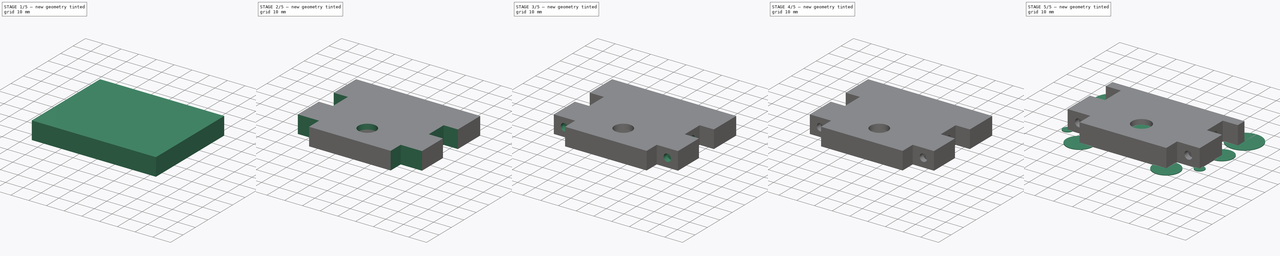
[diagram: build sequence overview — one tinted view per stage of 5, left to right]
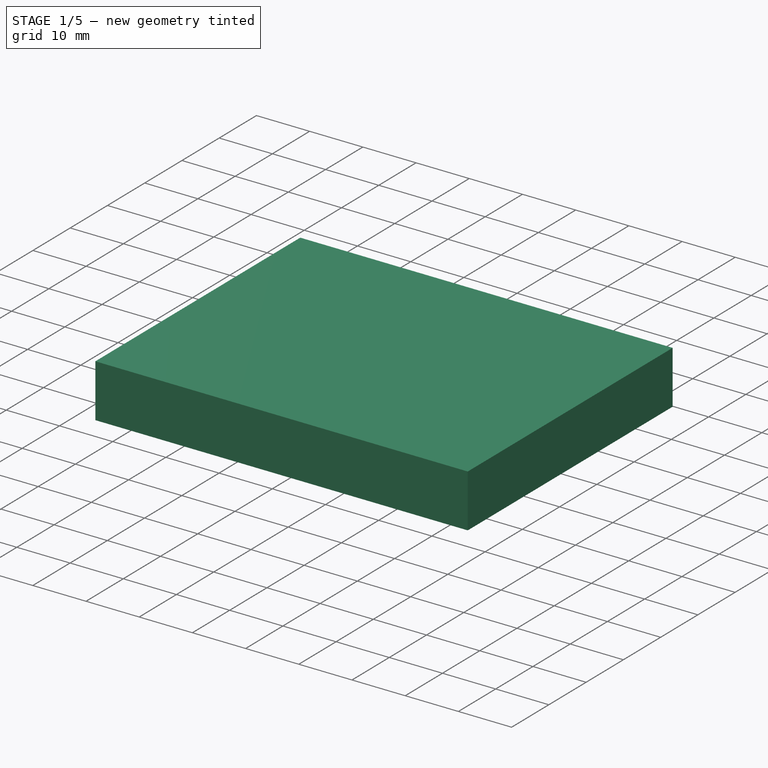
[diagram: stage 1 of 5 — iso view after this stage's code; geometry added in this stage tinted green]
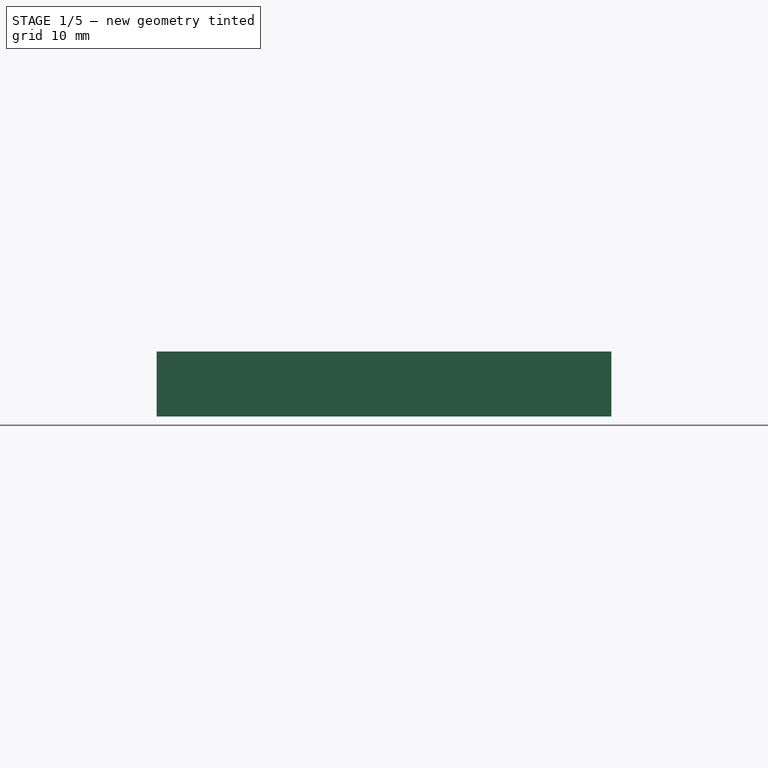
[diagram: stage 1 of 5 — front view after this stage's code; geometry added in this stage tinted green]
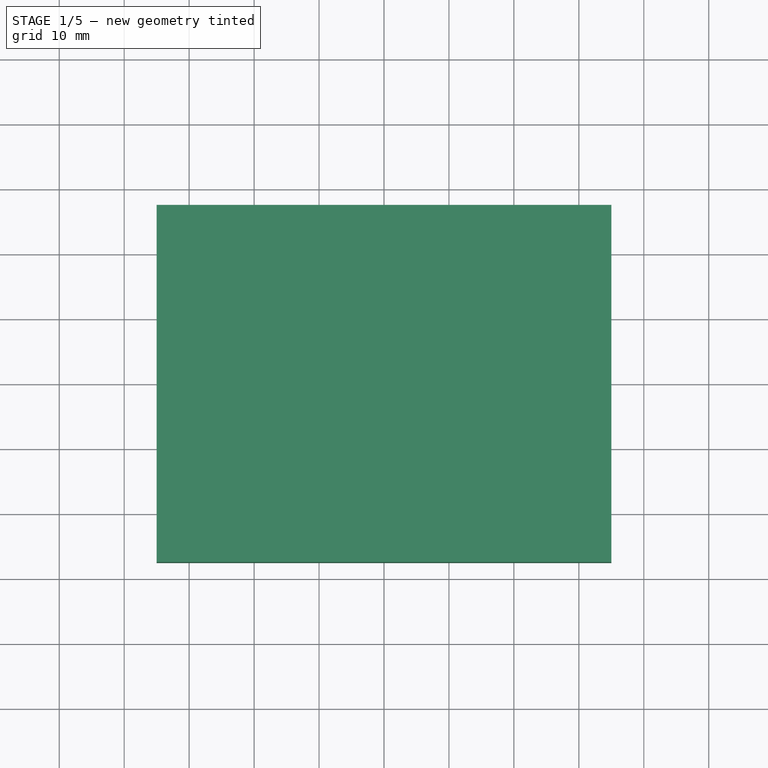
[diagram: stage 1 of 5 — top view after this stage's code; geometry added in this stage tinted green]
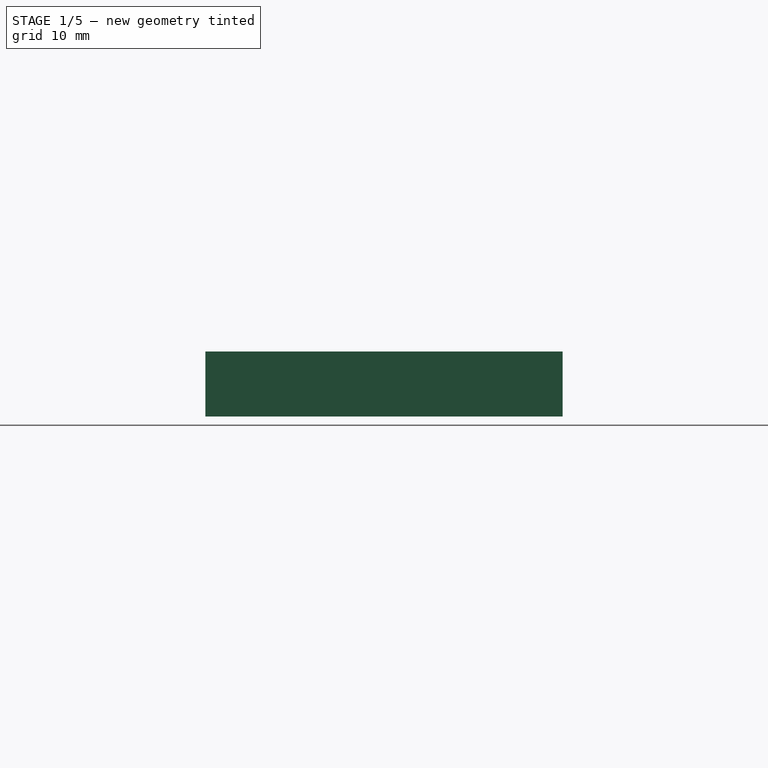
[diagram: stage 1 of 5 — right view after this stage's code; geometry added in this stage tinted green]
FCSTD DOCUMENT  (FreeCAD 0.15R4671 (Git))
Label: Halter Fraesspindel Bot
License: All rights reserved
LicenseURL: http://de.wikipedia.org/wiki/Alle_Rechte_vorbehalten
objects: Sketcher::SketchObject×13, PartDesign::Pocket×7, PartDesign::Pad×6, Part::Cut×3
note: 42 computed .brp shape members not serialized (recipe doc carries the construction recipe); baked Part::Feature solids carry a one-line shape summary decoded from their .brp

FEATURE [Sketcher::SketchObject] Sketch
  sketch-geometry (4):
    g0: LineSegment StartX=-35 StartY=27.5 StartZ=0 EndX=35 EndY=27.5 EndZ=0
    g1: LineSegment StartX=35 StartY=27.5 StartZ=0 EndX=35 EndY=-27.5 EndZ=0
    g2: LineSegment StartX=35 StartY=-27.5 StartZ=0 EndX=-35 EndY=-27.5 EndZ=0
    g3: LineSegment StartX=-35 StartY=-27.5 StartZ=0 EndX=-35 EndY=27.5 EndZ=0
  constraints (12):
    c: Coincident(g0,g1)
    c: Coincident(g1,g2)
    c: Coincident(g2,g3)
    c: Coincident(g3,g0)
    c: Horizontal(g0)
    c: Horizontal(g2)
    c: Vertical(g1)
    c: Vertical(g3)
    c: DistanceY(g3) = 55
    c: Symmetric(g0,g1,g-1)
    c: Symmetric(g0,g0,g-2)
    c: DistanceX(g0) = 70
FEATURE [PartDesign::Pad] Pad
  Length = 10
  Length2 = 100
  Sketch = -> Sketch
  Type = 0
FEATURE [Sketcher::SketchObject] Sketch001
  ExternalGeometry = -> [Pad]
  Placement = pos=(0,0,0) rot=(1,0,0;3.14159rad)
  Support = -> Pad [Face5]
  sketch-geometry (1):
    g0: Circle CenterX=0 CenterY=13.45 CenterZ=0 NormalX=0 NormalY=0 NormalZ=1 Radius=11.05
  constraints (3):
    c: PointOnObject(g0,g-2)
    c: Radius(g0) = 11.05
    c: DistanceY(g0,g-3) = 14.05
FEATURE [PartDesign::Pocket] Pocket
  Length = 7
  Sketch = -> Sketch001
  Type = 0
FEATURE [Sketcher::SketchObject] Sketch007
  Placement = pos=(-24,0,0) rot=(0.57735,0.57735,0.57735;2.0944rad)
  sketch-geometry (11):
    g0: LineSegment [constr] StartX=5.53516 StartY=1.475 StartZ=0 EndX=7.57032 EndY=5 EndZ=0
    g1: LineSegment StartX=7.57032 StartY=5 StartZ=0 EndX=5.53516 EndY=8.525 EndZ=0
    g2: LineSegment StartX=5.53516 StartY=8.525 StartZ=0 EndX=1.46484 EndY=8.525 EndZ=0
    g3: LineSegment StartX=1.46484 StartY=8.525 StartZ=0 EndX=-0.570319 EndY=5 EndZ=0
    g4: LineSegment [constr] StartX=-0.570319 StartY=5 StartZ=0 EndX=1.46484 EndY=1.475 EndZ=0
    g5: LineSegment [constr] StartX=1.46484 StartY=1.475 StartZ=0 EndX=5.53516 EndY=1.475 EndZ=0
    g6: Circle [constr] CenterX=3.5 CenterY=5 CenterZ=0 NormalX=0 NormalY=0 NormalZ=1 Radius=4.07032
    g7: LineSegment StartX=-0.570319 StartY=0 StartZ=0 EndX=7.57032 EndY=0 EndZ=0
    g8: LineSegment StartX=7.57032 StartY=0 StartZ=0 EndX=7.57032 EndY=5 EndZ=0
    g9: LineSegment [constr] StartX=7.57032 StartY=5 StartZ=0 EndX=-0.570319 EndY=5 EndZ=0
    g10: LineSegment StartX=-0.570319 StartY=5 StartZ=0 EndX=-0.570319 EndY=0 EndZ=0
  constraints (28):
    c: Coincident(g0,g1)
    c: Coincident(g1,g2)
    c: Coincident(g2,g3)
    c: Coincident(g3,g4)
    c: Coincident(g4,g5)
    c: Coincident(g5,g0)
    c: Equal(g0, g1-g5) x5
    c: PointOnObject(g0,g6)
    c: PointOnObject(g1,g6)
    c: PointOnObject(g2,g6)
    c: PointOnObject(g3,g6)
    c: PointOnObject(g4,g6)
    c: PointOnObject(g5,g6)
    c: Horizontal(g5)
    c: Coincident(g7,g8)
    c: Coincident(g8,g9)
    c: Coincident(g9,g10)
    c: Coincident(g10,g7)
    c: Horizontal(g7)
    c: Horizontal(g9)
    c: Vertical(g8)
    c: Vertical(g10)
    c: Coincident(g8,g0)
    c: Coincident(g9,g3)
    c: PointOnObject(g7,g-1)
    c: DistanceX(g6) = 3.5
    c: DistanceY(g6) = 5
    c: Distance(g1,g0) = 7.05
FEATURE [PartDesign::Pad] Pad001
  Length = 5.1
  Length2 = 100
  Placement = pos=(-24,0,0) rot=(0.57735,0.57735,0.57735;2.0944rad)
  Sketch = -> Sketch007
  Type = 0
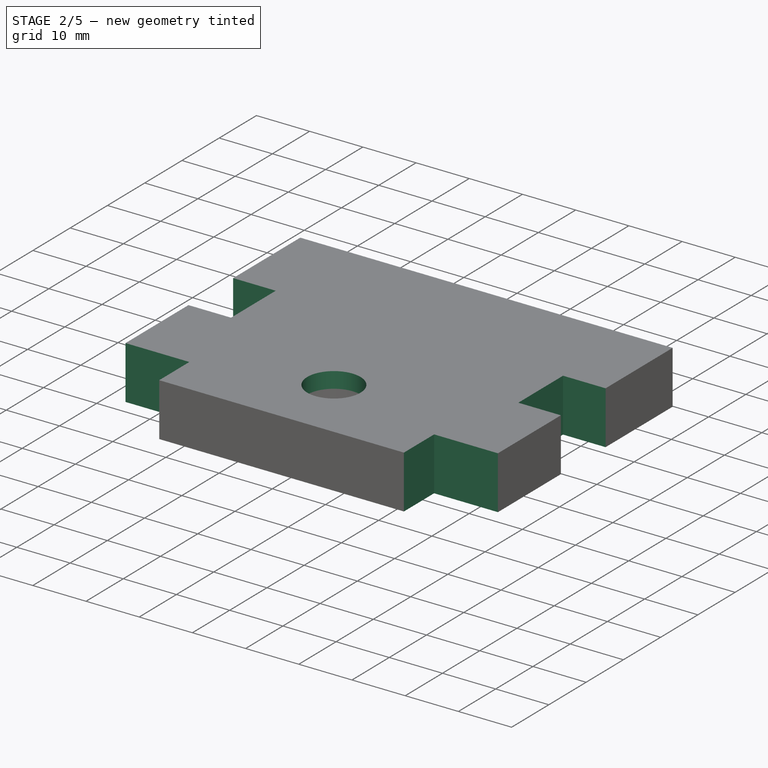
[diagram: stage 2 of 5 — iso view after this stage's code; geometry added in this stage tinted green]
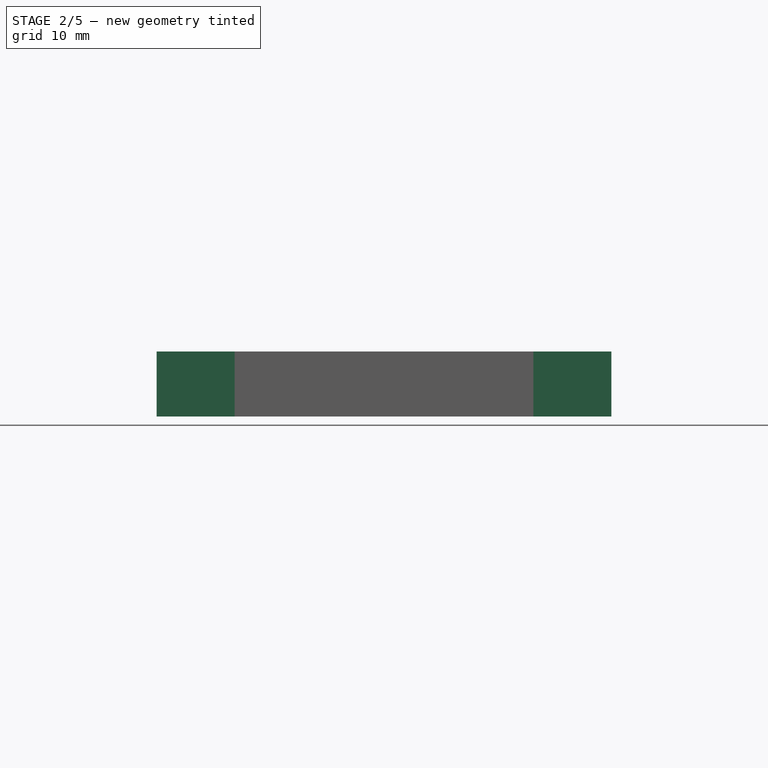
[diagram: stage 2 of 5 — front view after this stage's code; geometry added in this stage tinted green]
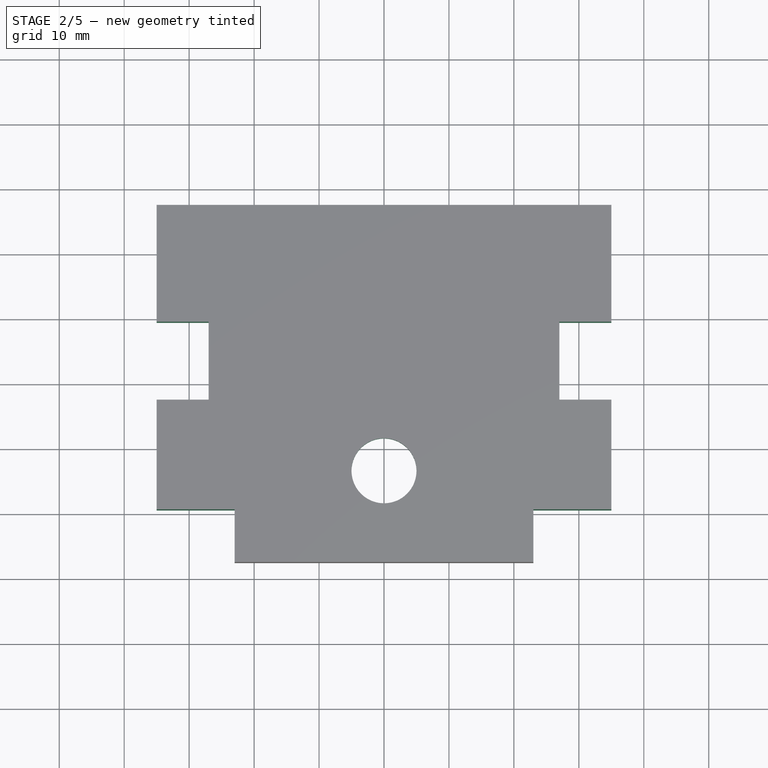
[diagram: stage 2 of 5 — top view after this stage's code; geometry added in this stage tinted green]
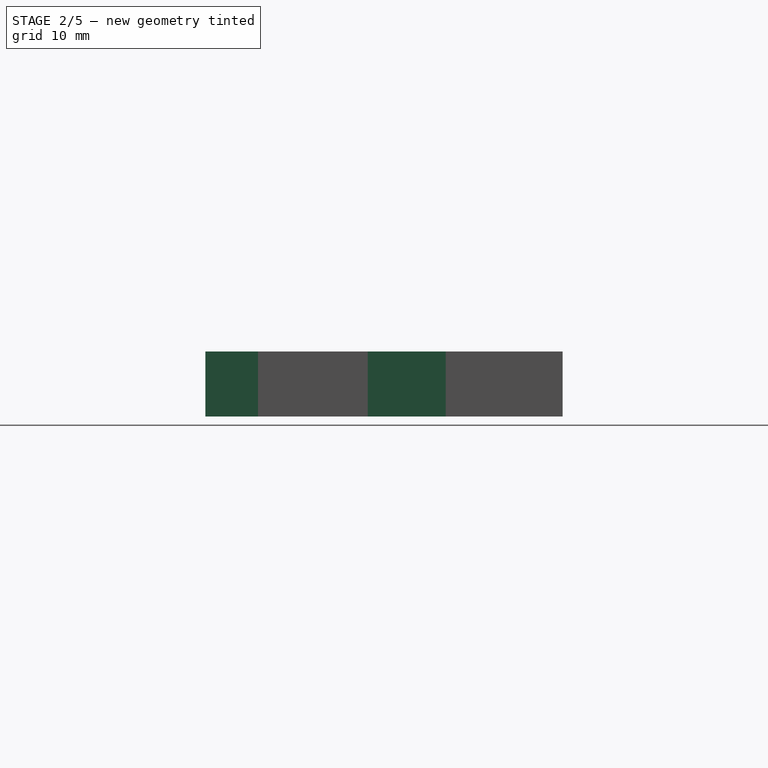
[diagram: stage 2 of 5 — right view after this stage's code; geometry added in this stage tinted green]
FEATURE [Sketcher::SketchObject] Sketch002
  ExternalGeometry = -> [Pocket]
  Placement = pos=(0,0,7) rot=(1,0,0;3.14159rad)
  Support = -> Pocket [Face8]
  sketch-geometry (1):
    g0: Circle CenterX=0 CenterY=13.45 CenterZ=0 NormalX=0 NormalY=0 NormalZ=1 Radius=5
  constraints (2):
    c: Coincident(g0,g-3)
    c: Radius(g0) = 5
FEATURE [PartDesign::Pocket] Pocket001
  Length = 5
  Sketch = -> Sketch002
  Type = 1
FEATURE [Sketcher::SketchObject] Sketch003
  ExternalGeometry = -> [Pocket001]
  Placement = pos=(0,0,10) rot=(0,0,1;0rad)
  Support = -> Pocket001 [Face5]
  sketch-geometry (16):
    g0: LineSegment StartX=-35 StartY=-27.5 StartZ=0 EndX=-23 EndY=-27.5 EndZ=0
    g1: LineSegment StartX=-23 StartY=-27.5 StartZ=0 EndX=-23 EndY=-19.4 EndZ=0
    g2: LineSegment StartX=-23 StartY=-19.4 StartZ=0 EndX=-35 EndY=-19.4 EndZ=0
    g3: LineSegment StartX=-35 StartY=-19.4 StartZ=0 EndX=-35 EndY=-27.5 EndZ=0
    g4: LineSegment StartX=35 StartY=-27.5 StartZ=0 EndX=23 EndY=-27.5 EndZ=0
    g5: LineSegment StartX=23 StartY=-27.5 StartZ=0 EndX=23 EndY=-19.4 EndZ=0
    g6: LineSegment StartX=23 StartY=-19.4 StartZ=0 EndX=35 EndY=-19.4 EndZ=0
    g7: LineSegment StartX=35 StartY=-19.4 StartZ=0 EndX=35 EndY=-27.5 EndZ=0
    g8: LineSegment StartX=-35 StartY=9.5 StartZ=0 EndX=-27 EndY=9.5 EndZ=0
    g9: LineSegment StartX=-27 StartY=9.5 StartZ=0 EndX=-27 EndY=-2.5 EndZ=0
    g10: LineSegment StartX=-27 StartY=-2.5 StartZ=0 EndX=-35 EndY=-2.5 EndZ=0
    g11: LineSegment StartX=-35 StartY=-2.5 StartZ=0 EndX=-35 EndY=9.5 EndZ=0
    g12: LineSegment StartX=35 StartY=9.5 StartZ=0 EndX=27 EndY=9.5 EndZ=0
    g13: LineSegment StartX=27 StartY=9.5 StartZ=0 EndX=27 EndY=-2.5 EndZ=0
    g14: LineSegment StartX=27 StartY=-2.5 StartZ=0 EndX=35 EndY=-2.5 EndZ=0
    g15: LineSegment StartX=35 StartY=-2.5 StartZ=0 EndX=35 EndY=9.5 EndZ=0
  constraints (46):
    c: Coincident(g0,g1)
    c: Coincident(g1,g2)
    c: Coincident(g2,g3)
    c: Coincident(g3,g0)
    c: Horizontal(g0)
    c: Horizontal(g2)
    c: Vertical(g1)
    c: Vertical(g3)
    c: Coincident(g0,g-3)
    c: Coincident(g4,g5)
    c: Coincident(g5,g6)
    c: Coincident(g6,g7)
    c: Coincident(g7,g4)
    c: Horizontal(g4)
    c: Horizontal(g6)
    c: Vertical(g5)
    c: Vertical(g7)
    c: Coincident(g4,g-4)
    c: Coincident(g8,g9)
    c: Coincident(g9,g10)
    c: Coincident(g10,g11)
    c: Coincident(g11,g8)
    c: Horizontal(g8)
    c: Horizontal(g10)
    c: Vertical(g9)
    c: Vertical(g11)
    c: PointOnObject(g8,g-3)
    c: Coincident(g12,g13)
    c: Coincident(g13,g14)
    c: Coincident(g14,g15)
    c: Coincident(g15,g12)
    c: Horizontal(g12)
    c: Horizontal(g14)
    c: Vertical(g13)
    c: Vertical(g15)
    c: PointOnObject(g12,g-4)
    c: PointOnObject(g9,g14)
    c: Equal(g1,g5)
    c: Equal(g13,g6)
    c: Equal(g6,g2)
    c: Equal(g2,g9)
    c: DistanceY(g14,g4) = -25
    c: DistanceY(g5) = 8.1
    c: DistanceX(g6) = 12
    c: Equal(g10,g14)
    c: DistanceX(g8) = 8
FEATURE [PartDesign::Pocket] Pocket002
  Length = 5
  Sketch = -> Sketch003
  Type = 1
FEATURE [Sketcher::SketchObject] Sketch004
  ExternalGeometry = -> [Pocket002]
  Placement = pos=(-27,0,0) rot=(0.57735,-0.57735,-0.57735;2.0944rad)
  Support = -> Pocket002 [Face18]
  sketch-geometry (3):
    g0: LineSegment [constr] StartX=-9.5 StartY=0 StartZ=0 EndX=2.5 EndY=10 EndZ=0
    g1: LineSegment [constr] StartX=-9.5 StartY=10 StartZ=0 EndX=2.5 EndY=0 EndZ=0
    g2: Circle CenterX=-3.5 CenterY=5 CenterZ=0 NormalX=0 NormalY=0 NormalZ=1 Radius=2.1
  constraints (7):
    c: Coincident(g0,g-4)
    c: Coincident(g0,g-3)
    c: Coincident(g1,g-4)
    c: Coincident(g1,g-3)
    c: PointOnObject(g2,g0)
    c: PointOnObject(g2,g1)
    c: Radius(g2) = 2.1
FEATURE [PartDesign::Pocket] Pocket003
  Length = 10
  Sketch = -> Sketch004
  Type = 0
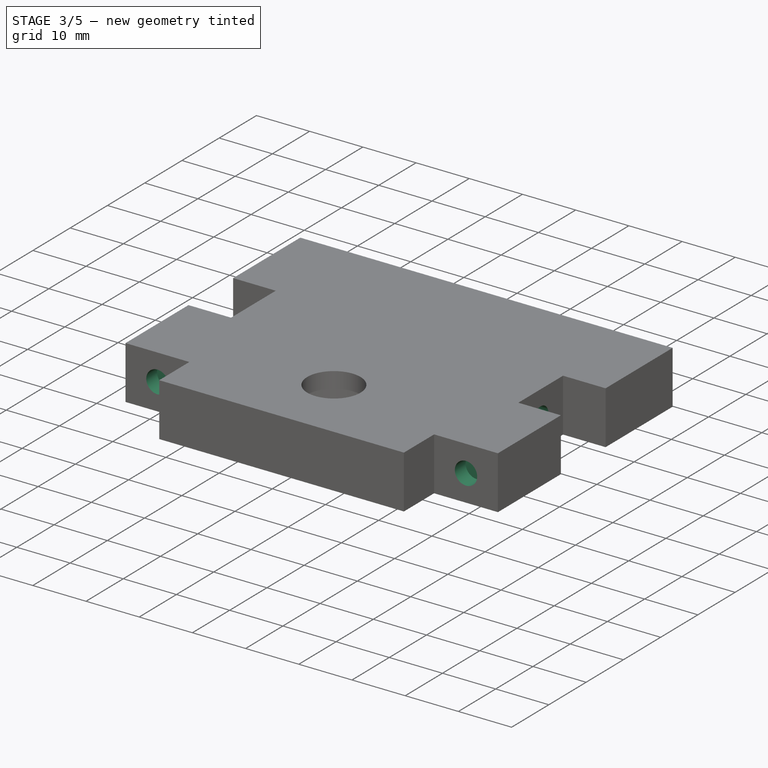
[diagram: stage 3 of 5 — iso view after this stage's code; geometry added in this stage tinted green]
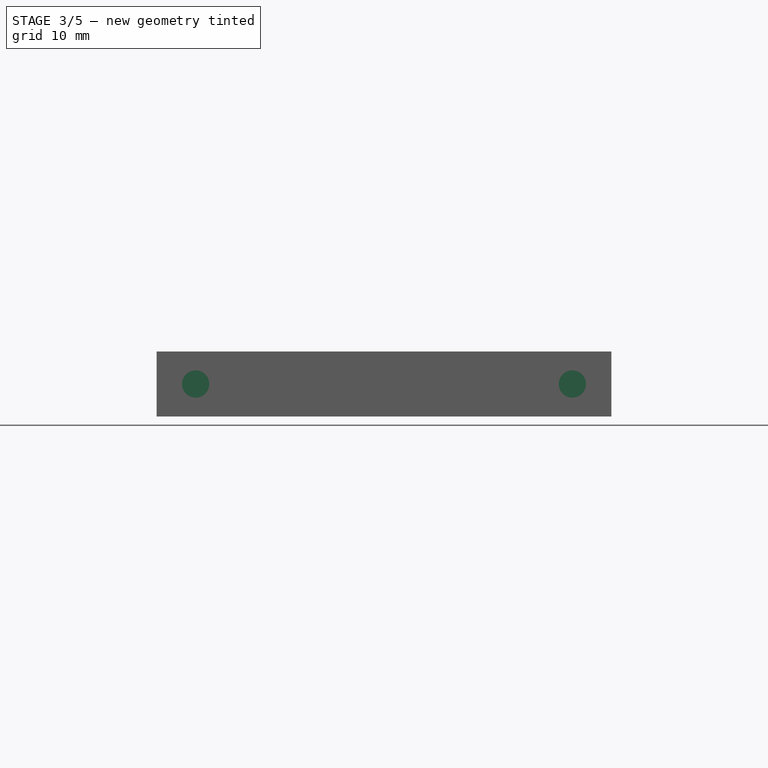
[diagram: stage 3 of 5 — front view after this stage's code; geometry added in this stage tinted green]
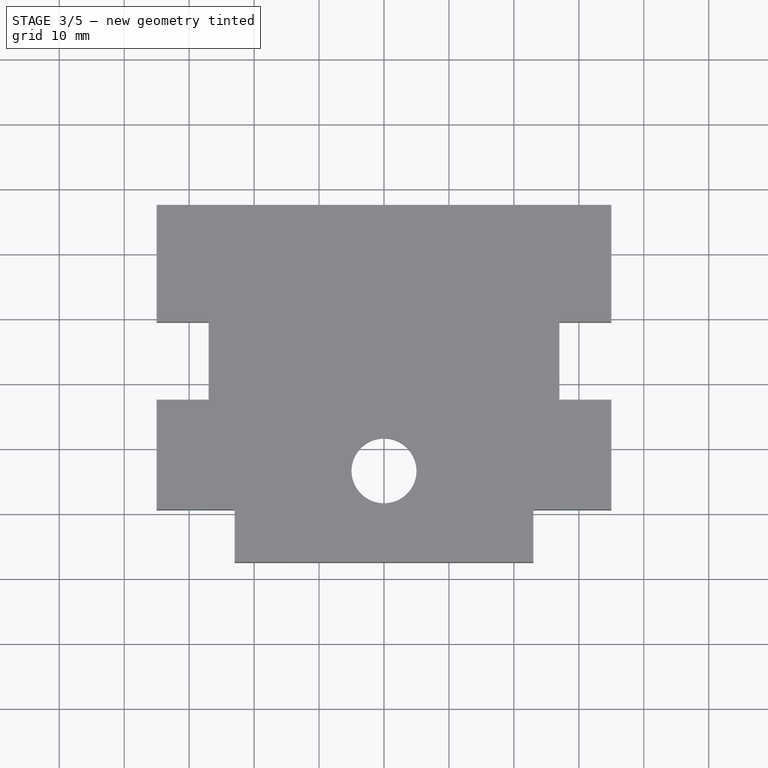
[diagram: stage 3 of 5 — top view after this stage's code; geometry added in this stage tinted green]
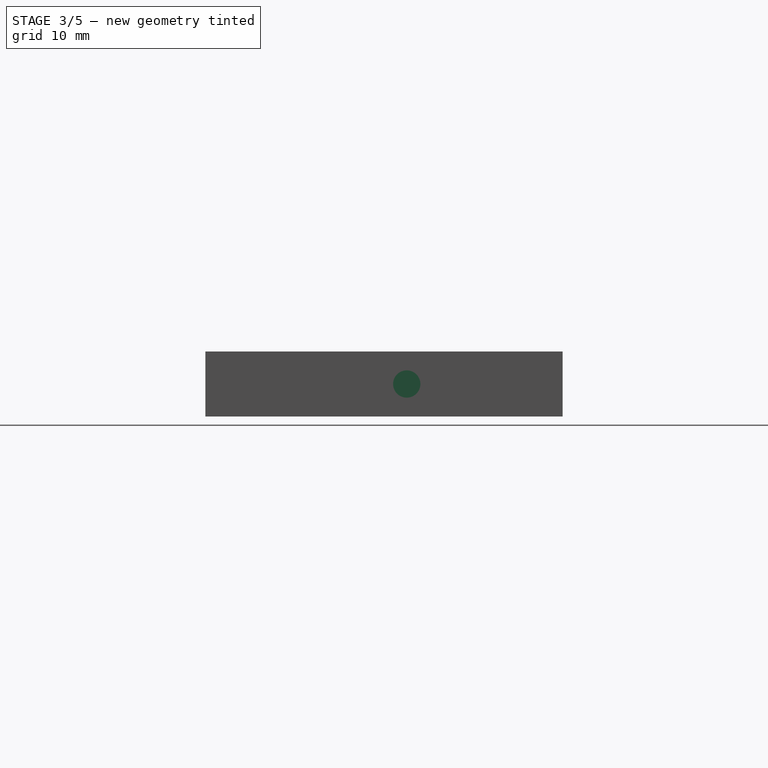
[diagram: stage 3 of 5 — right view after this stage's code; geometry added in this stage tinted green]
FEATURE [Sketcher::SketchObject] Sketch005
  ExternalGeometry = -> [Pocket003]
  Placement = pos=(27,0,0) rot=(0.57735,0.57735,0.57735;2.0944rad)
  Support = -> Pocket003 [Face8]
  sketch-geometry (3):
    g0: LineSegment [constr] StartX=9.5 StartY=10 StartZ=0 EndX=-2.5 EndY=0 EndZ=0
    g1: LineSegment [constr] StartX=-2.5 StartY=10 StartZ=0 EndX=9.5 EndY=0 EndZ=0
    g2: Circle CenterX=3.5 CenterY=5 CenterZ=0 NormalX=0 NormalY=0 NormalZ=1 Radius=2.1
  constraints (7):
    c: Coincident(g0,g-4)
    c: Coincident(g0,g-3)
    c: Coincident(g1,g-3)
    c: Coincident(g1,g-4)
    c: PointOnObject(g2,g0)
    c: PointOnObject(g2,g1)
    c: Radius(g2) = 2.1
FEATURE [PartDesign::Pocket] Pocket004
  Length = 10
  Sketch = -> Sketch005
  Type = 0
FEATURE [Sketcher::SketchObject] Sketch006
  ExternalGeometry = -> [Pocket004]
  Placement = pos=(0,-19.4,0) rot=(1,0,0;1.5708rad)
  Support = -> Pocket004 [Face15]
  sketch-geometry (4):
    g0: Circle CenterX=-29 CenterY=5 CenterZ=0 NormalX=0 NormalY=0 NormalZ=1 Radius=2.1
    g1: Circle CenterX=29 CenterY=5 CenterZ=0 NormalX=0 NormalY=0 NormalZ=1 Radius=2.1
    g2: LineSegment [constr] StartX=23 StartY=0 StartZ=0 EndX=35 EndY=10 EndZ=0
    g3: LineSegment [constr] StartX=23 StartY=10 StartZ=0 EndX=35 EndY=0 EndZ=0
  constraints (9):
    c: Symmetric(g0,g1,g-2)
    c: Equal(g0,g1)
    c: Radius(g1) = 2.1
    c: Coincident(g2,g-4)
    c: Coincident(g2,g-3)
    c: Coincident(g3,g-4)
    c: Coincident(g3,g-3)
    c: PointOnObject(g1,g2)
    c: PointOnObject(g1,g3)
FEATURE [PartDesign::Pocket] Pocket005
  Length = 10
  Sketch = -> Sketch006
  Type = 0
FEATURE [Sketcher::SketchObject] Sketch009
  Placement = pos=(0,-16.5,0) rot=(1,0,0;1.5708rad)
  sketch-geometry (22):
    g0: LineSegment [constr] StartX=-26.9648 StartY=1.475 StartZ=0 EndX=-24.9297 EndY=5 EndZ=0
    g1: LineSegment StartX=-24.9297 StartY=5 StartZ=0 EndX=-26.9648 EndY=8.525 EndZ=0
    g2: LineSegment StartX=-26.9648 StartY=8.525 StartZ=0 EndX=-31.0352 EndY=8.525 EndZ=0
    g3: LineSegment StartX=-31.0352 StartY=8.525 StartZ=0 EndX=-33.0703 EndY=5 EndZ=0
    g4: LineSegment [constr] StartX=-33.0703 StartY=5 StartZ=0 EndX=-31.0352 EndY=1.475 EndZ=0
    g5: LineSegment [constr] StartX=-31.0352 StartY=1.475 StartZ=0 EndX=-26.9648 EndY=1.475 EndZ=0
    g6: Circle [constr] CenterX=-29 CenterY=5 CenterZ=0 NormalX=0 NormalY=0 NormalZ=1 Radius=4.07032
    g7: LineSegment [constr] StartX=31.0352 StartY=1.475 StartZ=0 EndX=33.0703 EndY=5 EndZ=0
    g8: LineSegment StartX=33.0703 StartY=5 StartZ=0 EndX=31.0352 EndY=8.525 EndZ=0
    g9: LineSegment StartX=31.0352 StartY=8.525 StartZ=0 EndX=26.9648 EndY=8.525 EndZ=0
    g10: LineSegment StartX=26.9648 StartY=8.525 StartZ=0 EndX=24.9297 EndY=5 EndZ=0
    g11: LineSegment [constr] StartX=24.9297 StartY=5 StartZ=0 EndX=26.9648 EndY=1.475 EndZ=0
    g12: LineSegment [constr] StartX=26.9648 StartY=1.475 StartZ=0 EndX=31.0352 EndY=1.475 EndZ=0
    g13: Circle [constr] CenterX=29 CenterY=5 CenterZ=0 NormalX=0 NormalY=0 NormalZ=1 Radius=4.07032
    g14: LineSegment StartX=-33.0703 StartY=0 StartZ=0 EndX=-24.9297 EndY=0 EndZ=0
    g15: LineSegment StartX=-24.9297 StartY=0 StartZ=0 EndX=-24.9297 EndY=5 EndZ=0
    g16: LineSegment [constr] StartX=-24.9297 StartY=5 StartZ=0 EndX=-33.0703 EndY=5 EndZ=0
    g17: LineSegment StartX=-33.0703 StartY=5 StartZ=0 EndX=-33.0703 EndY=0 EndZ=0
    g18: LineSegment StartX=33.0703 StartY=0 StartZ=0 EndX=24.9297 EndY=0 EndZ=0
    g19: LineSegment StartX=24.9297 StartY=0 StartZ=0 EndX=24.9297 EndY=5 EndZ=0
    g20: LineSegment [constr] StartX=24.9297 StartY=5 StartZ=0 EndX=33.0703 EndY=5 EndZ=0
    g21: LineSegment StartX=33.0703 StartY=5 StartZ=0 EndX=33.0703 EndY=0 EndZ=0
  constraints (55):
    c: Coincident(g0,g1)
    c: Coincident(g1,g2)
    c: Coincident(g2,g3)
    c: Coincident(g3,g4)
    c: Coincident(g4,g5)
    c: Coincident(g5,g0)
    c: Equal(g0, g1-g5) x5
    c: PointOnObject(g0,g6)
    c: PointOnObject(g1,g6)
    c: PointOnObject(g2,g6)
    c: PointOnObject(g3,g6)
    c: PointOnObject(g4,g6)
    c: PointOnObject(g5,g6)
    c: Horizontal(g5)
    c: Coincident(g7,g8)
    c: Coincident(g8,g9)
    c: Coincident(g9,g10)
    c: Coincident(g10,g11)
    c: Coincident(g11,g12)
    c: Coincident(g12,g7)
    c: Equal(g7, g8-g12) x5
    c: PointOnObject(g7,g13)
    c: PointOnObject(g8,g13)
    c: PointOnObject(g9,g13)
    c: PointOnObject(g10,g13)
    c: PointOnObject(g11,g13)
    c: PointOnObject(g12,g13)
    c: Horizontal(g12)
    c: Coincident(g14,g15)
    c: Coincident(g15,g16)
    c: Coincident(g16,g17)
    c: Coincident(g17,g14)
    c: Horizontal(g14)
    c: Horizontal(g16)
    c: Vertical(g15)
    c: Vertical(g17)
    c: PointOnObject(g14,g-1)
    c: Coincident(g15,g0)
    c: Coincident(g18,g19)
    c: Coincident(g19,g20)
    c: Coincident(g20,g21)
    c: Coincident(g21,g18)
    c: Horizontal(g18)
    c: Horizontal(g20)
    c: Vertical(g19)
    c: Vertical(g21)
    c: PointOnObject(g18,g-1)
    c: Coincident(g19,g10)
    c: Coincident(g16,g3)
    c: Coincident(g7,g20)
    c: Symmetric(g6,g13,g-2)
    c: Equal(g6,g13)
    c: Distance(g7,g8) = 7.05
    c: DistanceX(g13) = 29
    c: DistanceY(g13) = 5
FEATURE [PartDesign::Pad] Pad003
  Length = 5.1
  Length2 = 100
  Placement = pos=(0,-16.5,0) rot=(1,0,0;1.5708rad)
  Reversed = true
  Sketch = -> Sketch009
  Type = 0
FEATURE [Part::Cut] Cut
  Base = -> Pocket005
  Tool = -> Pad001
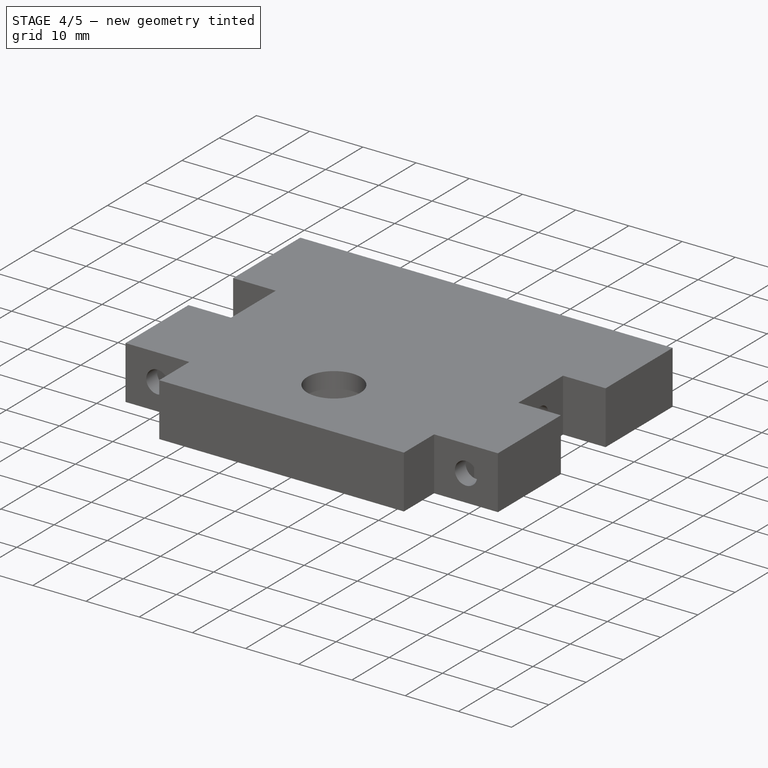
[diagram: stage 4 of 5 — iso view after this stage's code; geometry added in this stage tinted green]
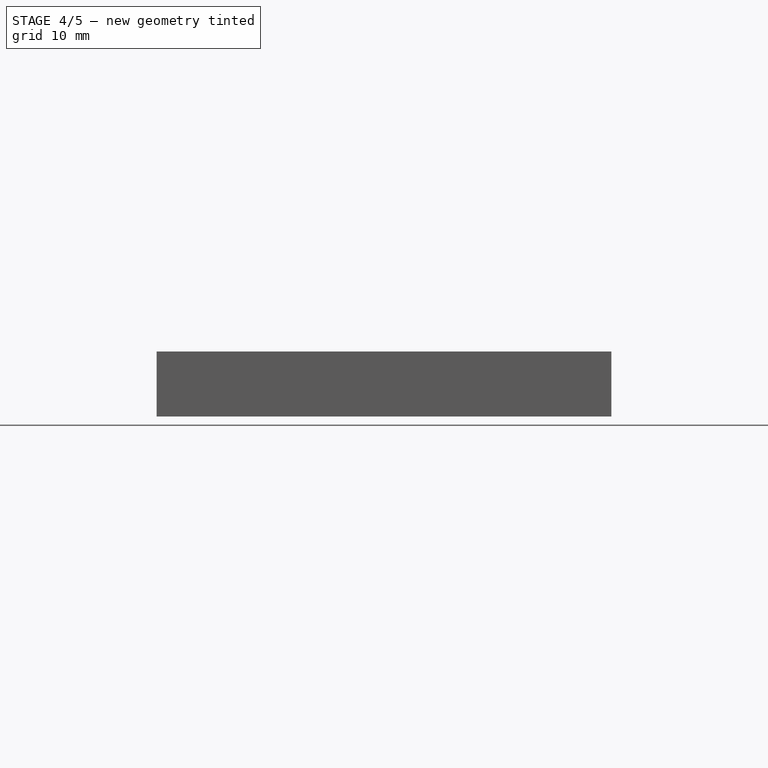
[diagram: stage 4 of 5 — front view after this stage's code; geometry added in this stage tinted green]
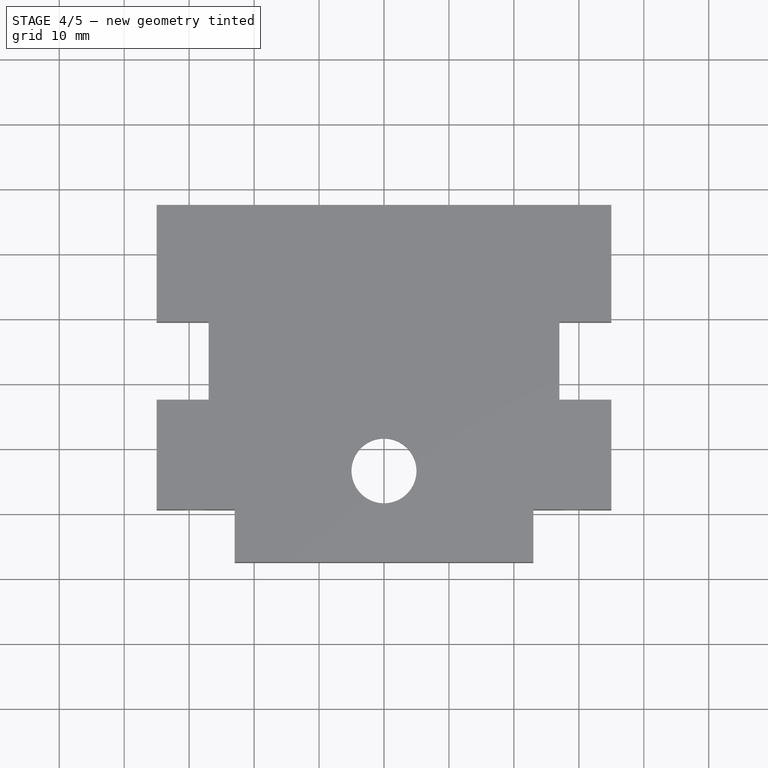
[diagram: stage 4 of 5 — top view after this stage's code; geometry added in this stage tinted green]
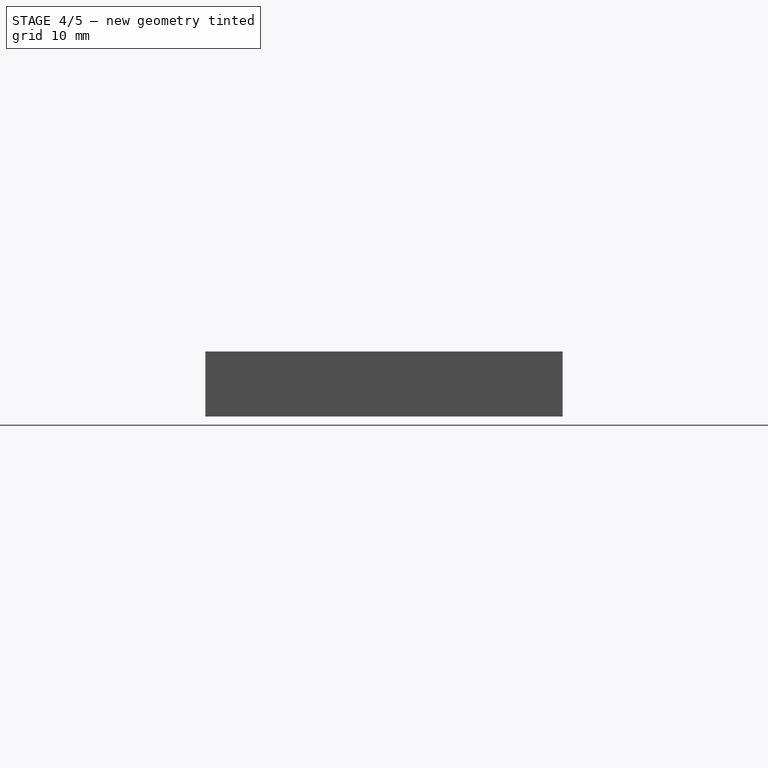
[diagram: stage 4 of 5 — right view after this stage's code; geometry added in this stage tinted green]
FEATURE [Sketcher::SketchObject] Sketch008
  Placement = pos=(24,0,0) rot=(0.57735,0.57735,0.57735;2.0944rad)
  sketch-geometry (11):
    g0: LineSegment [constr] StartX=5.53516 StartY=1.475 StartZ=0 EndX=7.57032 EndY=5 EndZ=0
    g1: LineSegment StartX=7.57032 StartY=5 StartZ=0 EndX=5.53516 EndY=8.525 EndZ=0
    g2: LineSegment StartX=5.53516 StartY=8.525 StartZ=0 EndX=1.46484 EndY=8.525 EndZ=0
    g3: LineSegment StartX=1.46484 StartY=8.525 StartZ=0 EndX=-0.570319 EndY=5 EndZ=0
    g4: LineSegment [constr] StartX=-0.570319 StartY=5 StartZ=0 EndX=1.46484 EndY=1.475 EndZ=0
    g5: LineSegment [constr] StartX=1.46484 StartY=1.475 StartZ=0 EndX=5.53516 EndY=1.475 EndZ=0
    g6: Circle [constr] CenterX=3.5 CenterY=5 CenterZ=0 NormalX=0 NormalY=0 NormalZ=1 Radius=4.07032
    g7: LineSegment StartX=7.57032 StartY=0 StartZ=0 EndX=-0.570319 EndY=0 EndZ=0
    g8: LineSegment StartX=-0.570319 StartY=0 StartZ=0 EndX=-0.570319 EndY=5 EndZ=0
    g9: LineSegment [constr] StartX=-0.570319 StartY=5 StartZ=0 EndX=7.57032 EndY=5 EndZ=0
    g10: LineSegment StartX=7.57032 StartY=5 StartZ=0 EndX=7.57032 EndY=0 EndZ=0
  constraints (28):
    c: Coincident(g0,g1)
    c: Coincident(g1,g2)
    c: Coincident(g2,g3)
    c: Coincident(g3,g4)
    c: Coincident(g4,g5)
    c: Coincident(g5,g0)
    c: Equal(g0, g1-g5) x5
    c: PointOnObject(g0,g6)
    c: PointOnObject(g1,g6)
    c: PointOnObject(g2,g6)
    c: PointOnObject(g3,g6)
    c: PointOnObject(g4,g6)
    c: PointOnObject(g5,g6)
    c: Horizontal(g5)
    c: Coincident(g7,g8)
    c: Coincident(g8,g9)
    c: Coincident(g9,g10)
    c: Coincident(g10,g7)
    c: Horizontal(g7)
    c: Horizontal(g9)
    c: Vertical(g8)
    c: Vertical(g10)
    c: PointOnObject(g7,g-1)
    c: Coincident(g8,g3)
    c: Coincident(g0,g9)
    c: Distance(g4,g2) = 7.05
    c: DistanceX(g6) = 3.5
    c: DistanceY(g6) = 5
FEATURE [PartDesign::Pad] Pad002
  Length = 5.1
  Length2 = 100
  Placement = pos=(24,0,0) rot=(0.57735,0.57735,0.57735;2.0944rad)
  Reversed = true
  Sketch = -> Sketch008
  Type = 0
FEATURE [Part::Cut] Cut001
  Base = -> Cut
  Tool = -> Pad003
FEATURE [Part::Cut] Cut002
  Base = -> Cut001
  Tool = -> Pad002
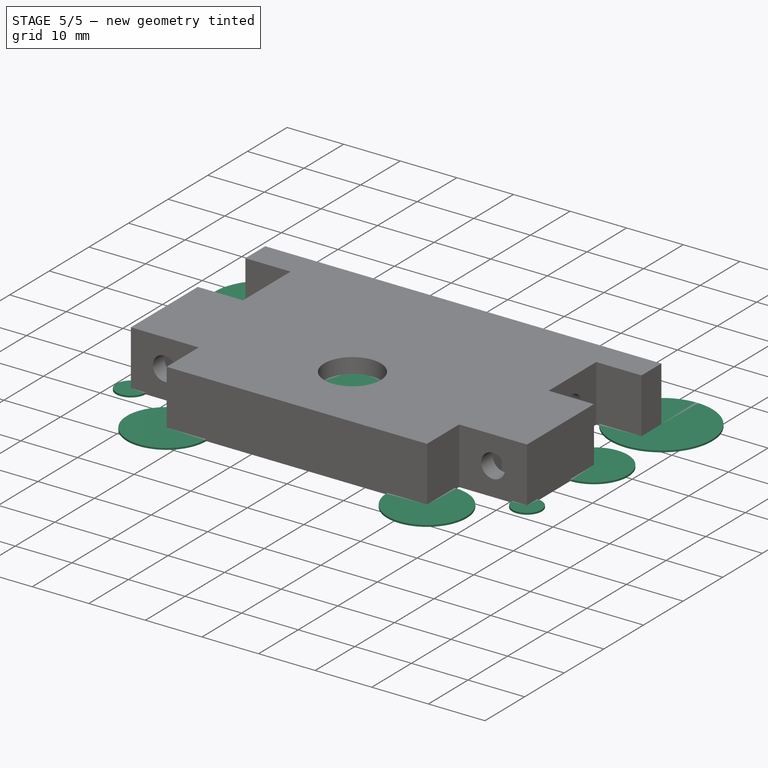
[diagram: stage 5 of 5 — iso view after this stage's code; geometry added in this stage tinted green]
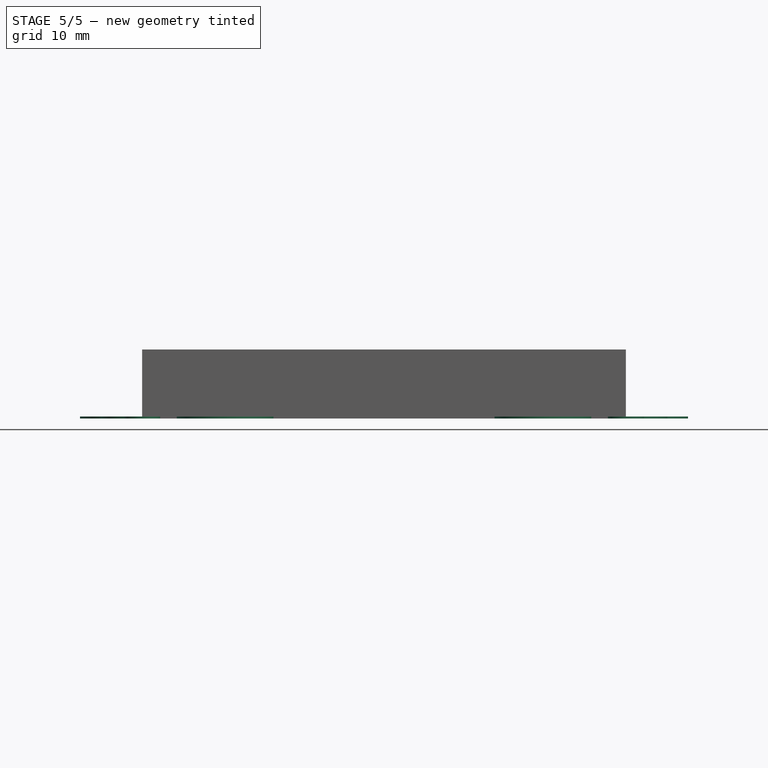
[diagram: stage 5 of 5 — front view after this stage's code; geometry added in this stage tinted green]
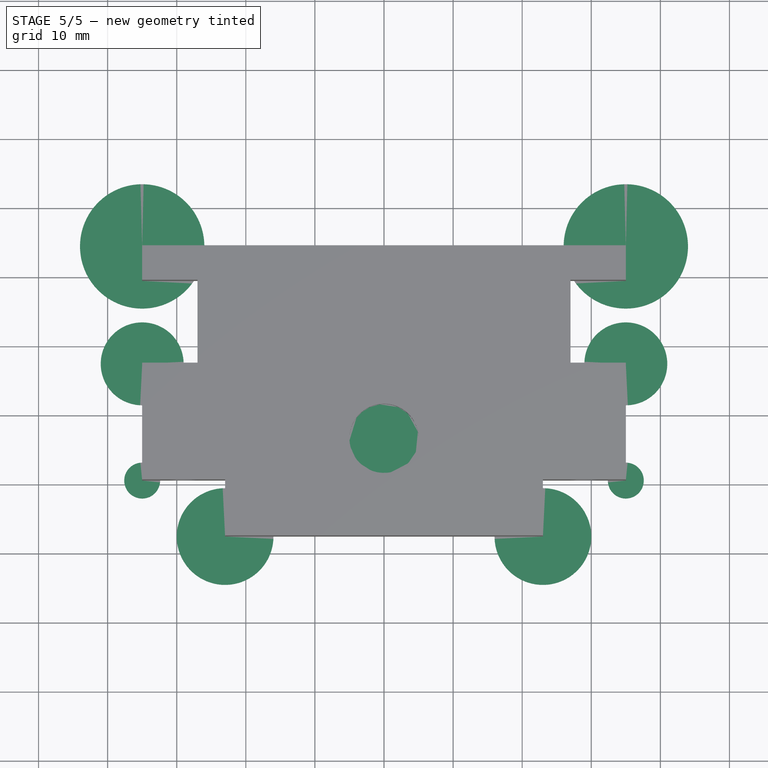
[diagram: stage 5 of 5 — top view after this stage's code; geometry added in this stage tinted green]
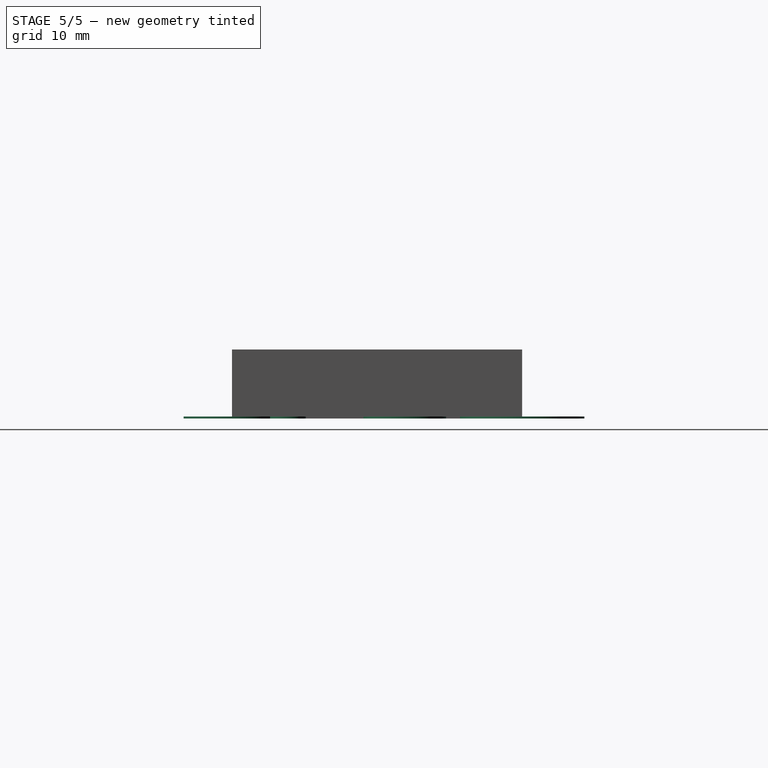
[diagram: stage 5 of 5 — right view after this stage's code; geometry added in this stage tinted green]
FEATURE [Sketcher::SketchObject] Sketch010
  ExternalGeometry = -> [Cut002]
  Placement = pos=(0,0,10) rot=(0,0,1;0rad)
  Support = -> Cut002 [Face5]
  sketch-geometry (4):
    g0: LineSegment StartX=-35 StartY=27.5 StartZ=0 EndX=35 EndY=27.5 EndZ=0
    g1: LineSegment StartX=35 StartY=27.5 StartZ=0 EndX=35 EndY=14.5 EndZ=0
    g2: LineSegment StartX=35 StartY=14.5 StartZ=0 EndX=-35 EndY=14.5 EndZ=0
    g3: LineSegment StartX=-35 StartY=14.5 StartZ=0 EndX=-35 EndY=27.5 EndZ=0
  constraints (11):
    c: Coincident(g0,g1)
    c: Coincident(g1,g2)
    c: Coincident(g2,g3)
    c: Coincident(g3,g0)
    c: Horizontal(g0)
    c: Horizontal(g2)
    c: Vertical(g1)
    c: Vertical(g3)
    c: Coincident(g0,g-3)
    c: Coincident(g0,g-3)
    c: DistanceY(g-4,g2) = 5
FEATURE [PartDesign::Pocket] Pocket006  label="Halterung Frässpindel Bot"
  Length = 5
  Sketch = -> Sketch010
  Type = 1
FEATURE [Sketcher::SketchObject] Sketch011
  ExternalGeometry = -> [Pocket006]
  Placement = pos=(0,0,0) rot=(1,0,0;3.14159rad)
  Support = -> Pocket006 [Face19]
  sketch-geometry (8):
    g0: Circle CenterX=-35 CenterY=-14.5 CenterZ=0 NormalX=0 NormalY=0 NormalZ=1 Radius=9
    g1: Circle CenterX=-35 CenterY=2.5 CenterZ=0 NormalX=0 NormalY=0 NormalZ=1 Radius=6
    g2: Circle CenterX=-23 CenterY=27.5 CenterZ=0 NormalX=0 NormalY=0 NormalZ=1 Radius=7
    g3: Circle CenterX=-35 CenterY=19.4 CenterZ=0 NormalX=0 NormalY=0 NormalZ=1 Radius=2.6
    g4: Circle CenterX=35 CenterY=19.4 CenterZ=0 NormalX=0 NormalY=0 NormalZ=1 Radius=2.6
    g5: Circle CenterX=23 CenterY=27.5 CenterZ=0 NormalX=0 NormalY=0 NormalZ=1 Radius=7
    g6: Circle CenterX=35 CenterY=2.5 CenterZ=0 NormalX=0 NormalY=0 NormalZ=1 Radius=6
    g7: Circle CenterX=35 CenterY=-14.5 CenterZ=0 NormalX=0 NormalY=0 NormalZ=1 Radius=9
  constraints (16):
    c: Coincident(g0,g-4)
    c: Coincident(g1,g-6)
    c: Coincident(g2,g-7)
    c: Coincident(g3,g-6)
    c: Coincident(g4,g-5)
    c: Coincident(g5,g-7)
    c: Coincident(g6,g-5)
    c: Coincident(g7,g-3)
    c: Radius(g3) = 2.6
    c: Equal(g3,g4)
    c: Radius(g1) = 6
    c: Equal(g1,g6)
    c: Radius(g0) = 9
    c: Equal(g0,g7)
    c: Radius(g2) = 7
    c: Equal(g2,g5)
FEATURE [PartDesign::Pad] Pad004
  Length = 0.3
  Length2 = 100
  Reversed = true
  Sketch = -> Sketch011
  Type = 0
FEATURE [Sketcher::SketchObject] Sketch012
  ExternalGeometry = -> [Pad004]
  Placement = pos=(0,0,7) rot=(1,0,0;3.14159rad)
  Support = -> Pad004 [Face44]
  sketch-geometry (1):
    g0: Circle CenterX=0 CenterY=13.45 CenterZ=0 NormalX=0 NormalY=0 NormalZ=1 Radius=5
  constraints (2):
    c: Coincident(g0,g-3)
    c: Equal(g0,g-3)
FEATURE [PartDesign::Pad] Pad005  label="Halterung Frässpindel Bot - Druck"
  Length = 0.3
  Length2 = 100
  Reversed = true
  Sketch = -> Sketch012
  Type = 0
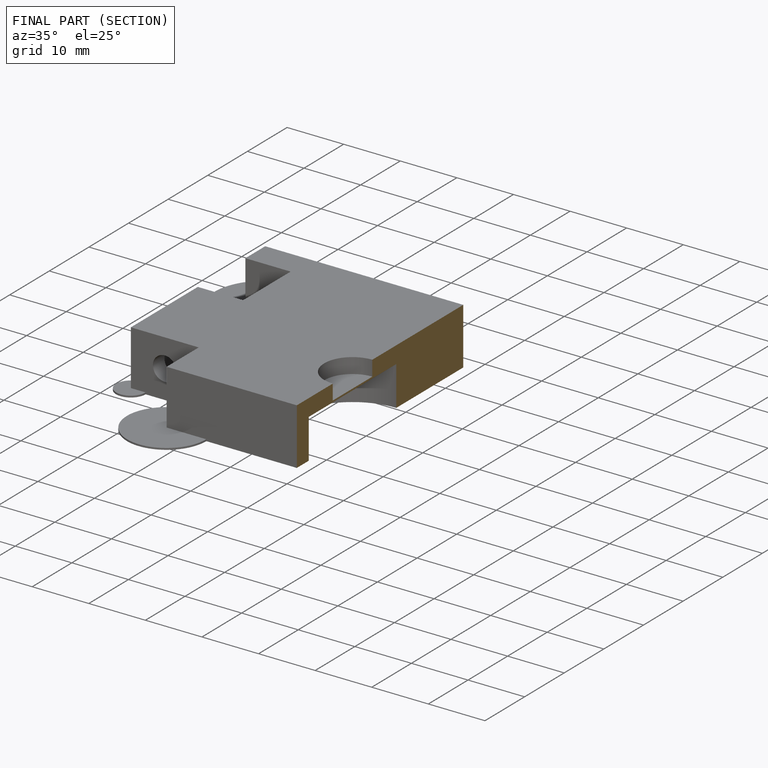
[diagram: finished part — half-section view (interior)]
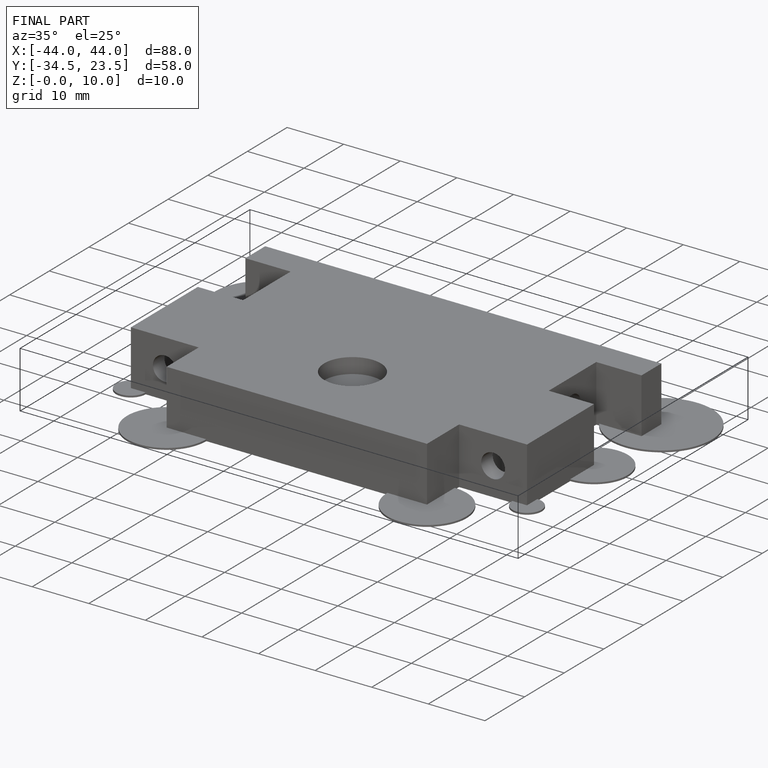
[diagram: finished part — iso view with bounding-box wireframe]
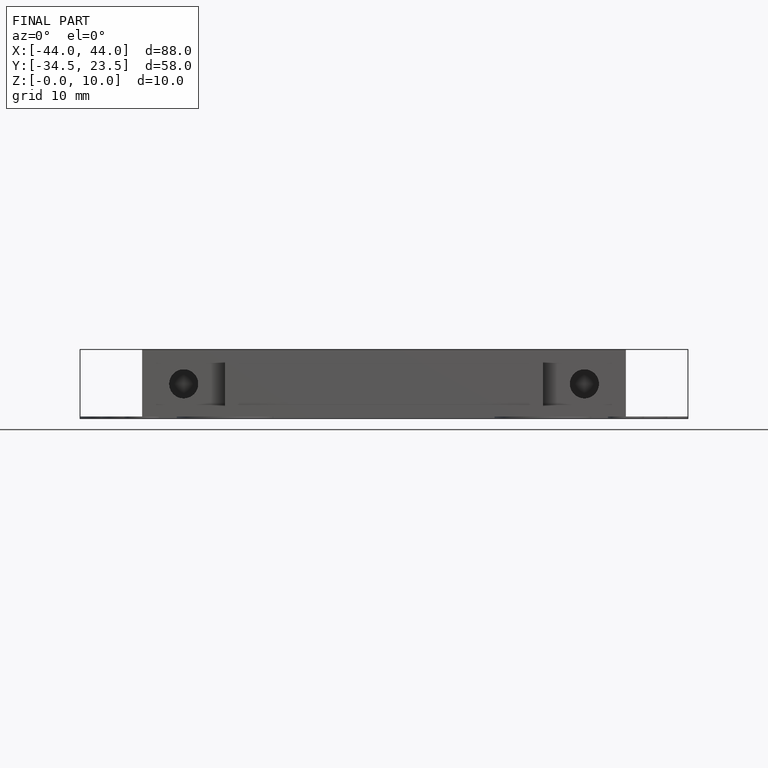
[diagram: finished part — front view with bounding-box wireframe]
